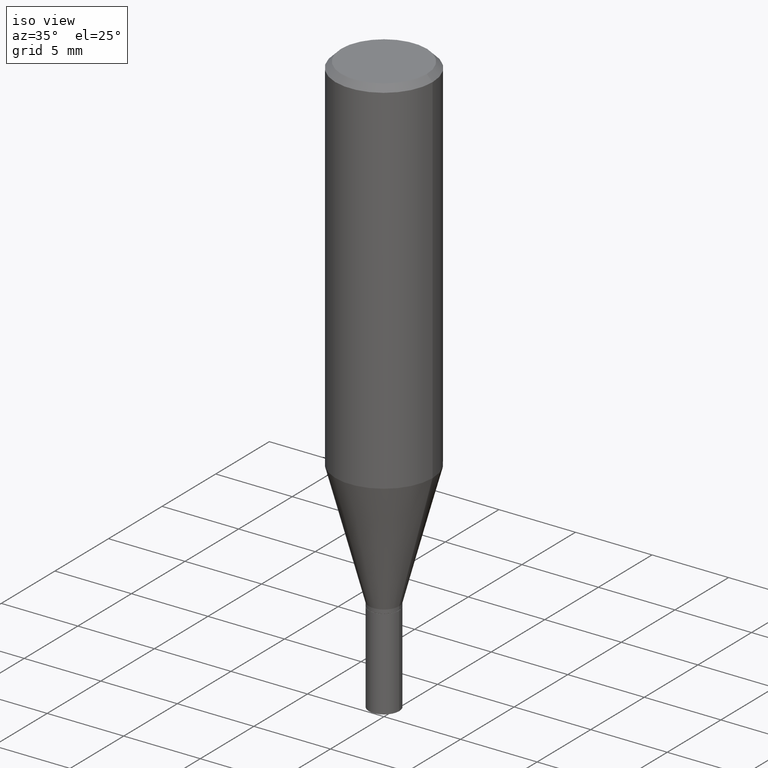
[diagram: clean part render]
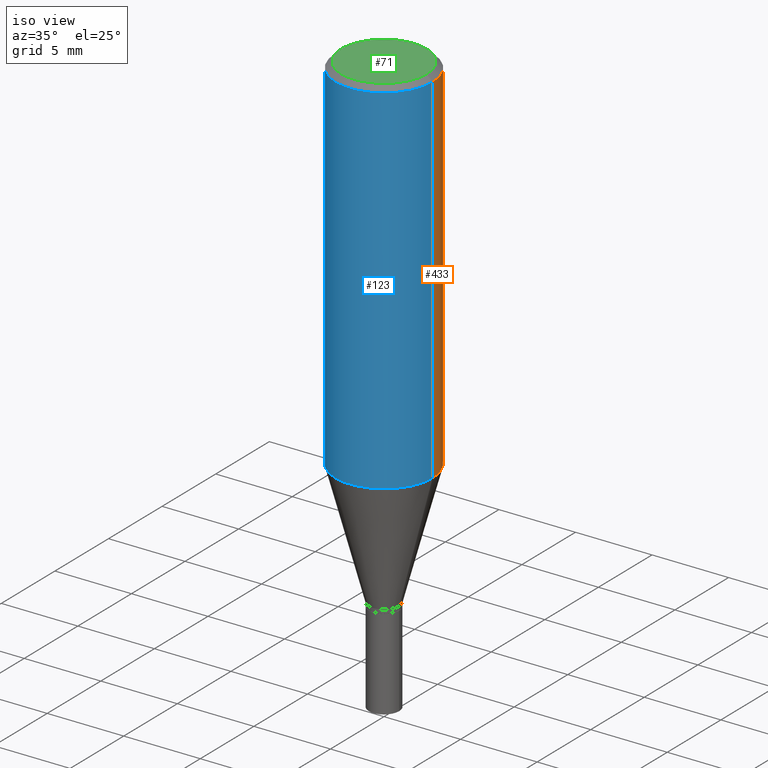
[diagram: same view with three faces highlighted in distinct colors, each labeled with its STEP entity id]
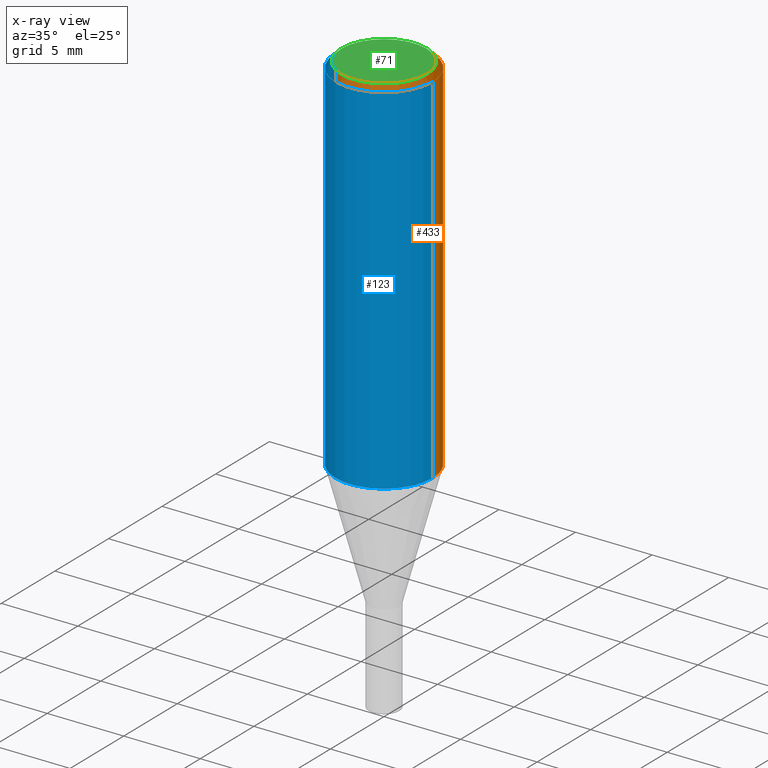
[diagram: x-ray of the same camera — body ghosted, the three highlighted faces saturated]
A machine part, iso view with three faces highlighted in distinct colors.
The next image is the same camera in x-ray (body ghosted, the three faces saturated) — at least one of them is partly hidden behind the body in this view.
Their STEP definitions:

[orange] entity #433 — the highlighted cylindrical surface (partial cylindrical patch) has radius 3.175 mm, axis along (-0, 0, 1).
#1 = DIRECTION ( 'NONE',  ( 1.000000000000000000, -6.982962677686266711E-15, 0.000000000000000000 ) ) ;
#36 = DIRECTION ( 'NONE',  ( -2.445468806185136877E-29, 3.491481338843145188E-15, 1.000000000000000000 ) ) ;
#41 = DIRECTION ( 'NONE',  ( 1.000000000000000000, -6.982962677686266711E-15, 4.876176775795935793E-29 ) ) ;
#56 = VERTEX_POINT ( 'NONE', #379 ) ;
#64 = AXIS2_PLACEMENT_3D ( 'NONE', #324, #460, #248 ) ;
#121 = ORIENTED_EDGE ( 'NONE', *, *, #281, .T. ) ;
#144 = CARTESIAN_POINT ( 'NONE',  ( 0.000000000000000000, 0.000000000000000000, 0.000000000000000000 ) ) ;
#155 = VERTEX_POINT ( 'NONE', #283 ) ;
#166 = CARTESIAN_POINT ( 'NONE',  ( 0.1250000000000000000, -8.728703347107833388E-16, 6.095220969744919741E-30 ) ) ;
#168 = CARTESIAN_POINT ( 'NONE',  ( 0.1250000000000000278, -4.138209241064543323E-15, -0.9352302330894556315 ) ) ;
#190 = AXIS2_PLACEMENT_3D ( 'NONE', #144, #293, #41 ) ;
#203 = EDGE_CURVE ( 'NONE', #229, #56, #357, .T. ) ;
#229 = VERTEX_POINT ( 'NONE', #168 ) ;
#241 = CIRCLE ( 'NONE', #260, 0.1250000000000000000 ) ;
#243 = DIRECTION ( 'NONE',  ( -2.445468806185136877E-29, 3.491481338843145188E-15, 1.000000000000000000 ) ) ;
#247 = FACE_OUTER_BOUND ( 'NONE', #259, .T. ) ;
#248 = DIRECTION ( 'NONE',  ( 1.000000000000000000, -6.982962677686266711E-15, 0.000000000000000000 ) ) ;
#256 = CYLINDRICAL_SURFACE ( 'NONE', #190, 0.1250000000000000000 ) ;
#259 = EDGE_LOOP ( 'NONE', ( #121, #333, #284, #265 ) ) ;
#260 = AXIS2_PLACEMENT_3D ( 'NONE', #360, #390, #1 ) ;
#264 = EDGE_CURVE ( 'NONE', #362, #155, #358, .T. ) ;
#265 = ORIENTED_EDGE ( 'NONE', *, *, #203, .F. ) ;
#268 = CARTESIAN_POINT ( 'NONE',  ( -0.1250000000000000278, -2.377160486653634357E-15, -0.9352302330894556315 ) ) ;
#281 = EDGE_CURVE ( 'NONE', #229, #362, #438, .T. ) ;
#283 = CARTESIAN_POINT ( 'NONE',  ( -0.1250000000000000000, -7.706771435180783978E-16, -0.01499999999999999944 ) ) ;
#284 = ORIENTED_EDGE ( 'NONE', *, *, #286, .F. ) ;
#286 = EDGE_CURVE ( 'NONE', #56, #155, #241, .T. ) ;
#293 = DIRECTION ( 'NONE',  ( -2.445468806185136597E-29, 3.491481338843145583E-15, 1.000000000000000000 ) ) ;
#324 = CARTESIAN_POINT ( 'NONE',  ( 2.287076361621518071E-29, -3.265338906353759984E-15, -0.9352302330894556315 ) ) ;
#333 = ORIENTED_EDGE ( 'NONE', *, *, #264, .T. ) ;
#357 = LINE ( 'NONE', #166, #391 ) ;
#358 = LINE ( 'NONE', #427, #363 ) ;
#360 = CARTESIAN_POINT ( 'NONE',  ( 3.668203209277705088E-31, -5.237222008264718399E-17, -0.01499999999999999944 ) ) ;
#362 = VERTEX_POINT ( 'NONE', #268 ) ;
#363 = VECTOR ( 'NONE', #243, 39.37007874015748143 ) ;
#379 = CARTESIAN_POINT ( 'NONE',  ( 0.1250000000000000000, -9.252425547934304180E-16, -0.01499999999999999944 ) ) ;
#390 = DIRECTION ( 'NONE',  ( -2.445468806185136597E-29, 3.491481338843145583E-15, 1.000000000000000000 ) ) ;
#391 = VECTOR ( 'NONE', #36, 39.37007874015748143 ) ;
#427 = CARTESIAN_POINT ( 'NONE',  ( -0.1250000000000000000, 8.881784197001252323E-16, -6.148668862818632227E-30 ) ) ;
#433 = ADVANCED_FACE ( 'NONE', ( #247 ), #256, .T. ) ;
#438 = CIRCLE ( 'NONE', #64, 0.1250000000000000000 ) ;
#460 = DIRECTION ( 'NONE',  ( -2.445468806185136597E-29, 3.491481338843145583E-15, 1.000000000000000000 ) ) ;

[blue] entity #123 — the highlighted cylindrical surface (partial cylindrical patch) has radius 3.175 mm, axis along (-0, 0, 1).
#6 = DIRECTION ( 'NONE',  ( -2.445468806185136597E-29, 3.491481338843145583E-15, 1.000000000000000000 ) ) ;
#36 = DIRECTION ( 'NONE',  ( -2.445468806185136877E-29, 3.491481338843145188E-15, 1.000000000000000000 ) ) ;
#50 = ORIENTED_EDGE ( 'NONE', *, *, #203, .T. ) ;
#56 = VERTEX_POINT ( 'NONE', #379 ) ;
#63 = CARTESIAN_POINT ( 'NONE',  ( 0.000000000000000000, 0.000000000000000000, 0.000000000000000000 ) ) ;
#104 = AXIS2_PLACEMENT_3D ( 'NONE', #63, #449, #131 ) ;
#123 = ADVANCED_FACE ( 'NONE', ( #382 ), #345, .T. ) ;
#131 = DIRECTION ( 'NONE',  ( 1.000000000000000000, -6.982962677686266711E-15, 4.876176775795935793E-29 ) ) ;
#132 = EDGE_CURVE ( 'NONE', #362, #229, #312, .T. ) ;
#138 = AXIS2_PLACEMENT_3D ( 'NONE', #156, #6, #261 ) ;
#155 = VERTEX_POINT ( 'NONE', #283 ) ;
#156 = CARTESIAN_POINT ( 'NONE',  ( 3.668203209277705088E-31, -5.237222008264718399E-17, -0.01499999999999999944 ) ) ;
#166 = CARTESIAN_POINT ( 'NONE',  ( 0.1250000000000000000, -8.728703347107833388E-16, 6.095220969744919741E-30 ) ) ;
#168 = CARTESIAN_POINT ( 'NONE',  ( 0.1250000000000000278, -4.138209241064543323E-15, -0.9352302330894556315 ) ) ;
#203 = EDGE_CURVE ( 'NONE', #229, #56, #357, .T. ) ;
#211 = DIRECTION ( 'NONE',  ( 1.000000000000000000, -6.982962677686266711E-15, 0.000000000000000000 ) ) ;
#229 = VERTEX_POINT ( 'NONE', #168 ) ;
#235 = CIRCLE ( 'NONE', #138, 0.1250000000000000000 ) ;
#243 = DIRECTION ( 'NONE',  ( -2.445468806185136877E-29, 3.491481338843145188E-15, 1.000000000000000000 ) ) ;
#261 = DIRECTION ( 'NONE',  ( 1.000000000000000000, -6.982962677686266711E-15, 0.000000000000000000 ) ) ;
#263 = ORIENTED_EDGE ( 'NONE', *, *, #350, .F. ) ;
#264 = EDGE_CURVE ( 'NONE', #362, #155, #358, .T. ) ;
#268 = CARTESIAN_POINT ( 'NONE',  ( -0.1250000000000000278, -2.377160486653634357E-15, -0.9352302330894556315 ) ) ;
#283 = CARTESIAN_POINT ( 'NONE',  ( -0.1250000000000000000, -7.706771435180783978E-16, -0.01499999999999999944 ) ) ;
#306 = ORIENTED_EDGE ( 'NONE', *, *, #132, .T. ) ;
#312 = CIRCLE ( 'NONE', #348, 0.1250000000000000000 ) ;
#345 = CYLINDRICAL_SURFACE ( 'NONE', #104, 0.1250000000000000000 ) ;
#348 = AXIS2_PLACEMENT_3D ( 'NONE', #389, #352, #211 ) ;
#350 = EDGE_CURVE ( 'NONE', #155, #56, #235, .T. ) ;
#352 = DIRECTION ( 'NONE',  ( -2.445468806185136597E-29, 3.491481338843145583E-15, 1.000000000000000000 ) ) ;
#357 = LINE ( 'NONE', #166, #391 ) ;
#358 = LINE ( 'NONE', #427, #363 ) ;
#362 = VERTEX_POINT ( 'NONE', #268 ) ;
#363 = VECTOR ( 'NONE', #243, 39.37007874015748143 ) ;
#379 = CARTESIAN_POINT ( 'NONE',  ( 0.1250000000000000000, -9.252425547934304180E-16, -0.01499999999999999944 ) ) ;
#382 = FACE_OUTER_BOUND ( 'NONE', #443, .T. ) ;
#389 = CARTESIAN_POINT ( 'NONE',  ( 2.287076361621518071E-29, -3.265338906353759984E-15, -0.9352302330894556315 ) ) ;
#391 = VECTOR ( 'NONE', #36, 39.37007874015748143 ) ;
#406 = ORIENTED_EDGE ( 'NONE', *, *, #264, .F. ) ;
#427 = CARTESIAN_POINT ( 'NONE',  ( -0.1250000000000000000, 8.881784197001252323E-16, -6.148668862818632227E-30 ) ) ;
#443 = EDGE_LOOP ( 'NONE', ( #406, #306, #50, #263 ) ) ;
#449 = DIRECTION ( 'NONE',  ( -2.445468806185136597E-29, 3.491481338843145583E-15, 1.000000000000000000 ) ) ;

[green] entity #71 — the highlighted planar face has unit normal (0, -0, -1).
#18 = ORIENTED_EDGE ( 'NONE', *, *, #276, .T. ) ;
#62 = FACE_OUTER_BOUND ( 'NONE', #161, .T. ) ;
#71 = ADVANCED_FACE ( 'NONE', ( #62 ), #456, .F. ) ;
#128 = VERTEX_POINT ( 'NONE', #163 ) ;
#136 = CARTESIAN_POINT ( 'NONE',  ( 0.1100000000000000006, -8.322946247794777961E-16, 4.589658644116375565E-16 ) ) ;
#142 = VERTEX_POINT ( 'NONE', #136 ) ;
#146 = AXIS2_PLACEMENT_3D ( 'NONE', #412, #148, #302 ) ;
#148 = DIRECTION ( 'NONE',  ( -2.445468806185136597E-29, 3.491481338843145583E-15, 1.000000000000000000 ) ) ;
#157 = ORIENTED_EDGE ( 'NONE', *, *, #364, .T. ) ;
#160 = CIRCLE ( 'NONE', #146, 0.1100000000000000006 ) ;
#161 = EDGE_LOOP ( 'NONE', ( #157, #18 ) ) ;
#163 = CARTESIAN_POINT ( 'NONE',  ( -0.1100000000000000006, 7.943120045868136075E-16, 4.589658644116265124E-16 ) ) ;
#169 = AXIS2_PLACEMENT_3D ( 'NONE', #318, #220, #323 ) ;
#179 = CIRCLE ( 'NONE', #169, 0.1100000000000000006 ) ;
#200 = DIRECTION ( 'NONE',  ( -1.000000000000000000, 6.982962677686265922E-15, -4.876176775795935793E-29 ) ) ;
#220 = DIRECTION ( 'NONE',  ( -2.445468806185136597E-29, 3.491481338843145583E-15, 1.000000000000000000 ) ) ;
#276 = EDGE_CURVE ( 'NONE', #142, #128, #179, .T. ) ;
#302 = DIRECTION ( 'NONE',  ( 1.000000000000000000, -6.982962677686266711E-15, 4.852736867747365646E-29 ) ) ;
#315 = CARTESIAN_POINT ( 'NONE',  ( 7.681258945454893776E-16, 0.1100000000000000006, -1.545800150669300521E-16 ) ) ;
#318 = CARTESIAN_POINT ( 'NONE',  ( -1.122386704522442906E-44, 1.602470750759226619E-30, 4.589658644116320345E-16 ) ) ;
#323 = DIRECTION ( 'NONE',  ( 1.000000000000000000, -6.982962677686266711E-15, 4.852736867747365646E-29 ) ) ;
#364 = EDGE_CURVE ( 'NONE', #128, #142, #160, .T. ) ;
#374 = DIRECTION ( 'NONE',  ( 2.438088387897960049E-29, -3.491481338843145188E-15, -1.000000000000000000 ) ) ;
#412 = CARTESIAN_POINT ( 'NONE',  ( -1.122386704522442906E-44, 1.602470750759226619E-30, 4.589658644116320345E-16 ) ) ;
#437 = AXIS2_PLACEMENT_3D ( 'NONE', #315, #374, #200 ) ;
#456 = PLANE ( 'NONE',  #437 ) ;